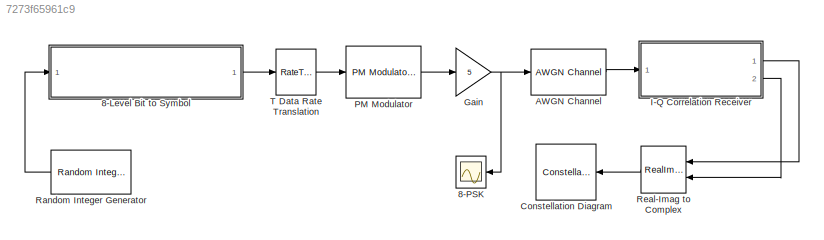
MODEL slx_7273f65961c9
KIND model
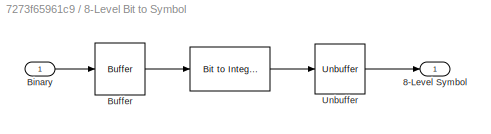
BLOCK [SubSystem] 8-Level Bit to Symbol 
  Ports = [1, 1]
  RequestExecContextInheritance = off
BLOCK [Reference] 8-Level Bit to Symbol /   REF=commutil2/Bit to Integer
Converter
  Ports = [1, 1]
  SourceBlock = commutil2/Bit to Integer\nConverter
  SourceType = Bit to Integer Converter
  bitOrder = MSB first
  nbits = 3
  outDtype = Inherit via internal rule
  outDtypeSigned = Inherit via internal rule
  signedOutputValues = Unsigned
BLOCK [Outport] 8-Level Bit to Symbol /8-Level Symbol
  IconDisplay = Port number
BLOCK [Inport] 8-Level Bit to Symbol /Binary
  IconDisplay = Port number
BLOCK [Buffer] 8-Level Bit to Symbol /Buffer
  N = 3
  TreatMby1Signals = One channel
BLOCK [Unbuffer] 8-Level Bit to Symbol /Unbuffer
  Ports = [1, 1]
  SampleBasedProcessing = Same as frame based
  ic = 3
BLOCK [Scope] 8-PSK
  DataFormat = StructureWithTime
  Floating = off
  NumInputPorts = 1
  Ports = [1]
  SampleTime = 0
  ShowLegends = off
  TimeRange = 0.005
  YMax = 6
  YMin = -6
BLOCK [Reference] AWGN Channel  REF=commchan3/AWGN
Channel
  EbNodB = 15
  EsNodB = 20
  InputProcessing = Inherited (this choice will be removed - see release notes)
  Ports = [1, 1]
  Ps = 12.5
  SNRdB = 10
  SourceBlock = commchan3/AWGN\nChannel
  SourceType = AWGN Channel
  Tsym = 3e-3
  UserDataPersistent = on
  bitsPerSym = 3
  noiseMode = Signal to noise ratio  (Eb/No)
  seed = randseed
  variance = 0
BLOCK [ConstellationDiagram] Constellation Diagram
  Ports = [1]
  ScopeSpecificationString = comm.scopes.ConstellationDiagramBlockCfg('CurrentConfiguration', extmgr.ConfigurationSet(extmgr.Configuration('Core','General UI',true),extmgr.Configuration('Core','Source UI',true),extmgr.Configuration('Sources','WiredSimulink',true),extmgr.Configuration('Sources','Simulink',false),extmgr.Configuration('Sources','File',false),extmgr.Configuration('Sources','Workspace',false),extmgr.Configuration(...<+1784ch>
BLOCK [Gain] Gain
  Gain = 5
  OutDataTypeStr = Inherit: Inherit via internal rule
  ParamDataTypeStr = Inherit: Inherit via internal rule
  SaturateOnIntegerOverflow = off
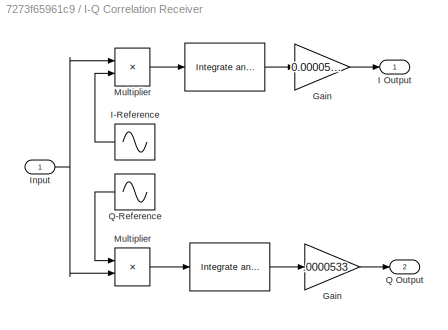
BLOCK [SubSystem] I-Q Correlation Receiver
  Ports = [1, 2]
  RequestExecContextInheritance = off
BLOCK [Reference] I-Q Correlation Receiver/   REF=commfilt2/Integrate
and Dump
  LockScale = off
  Ports = [1, 1]
  SourceBlock = commfilt2/Integrate\nand Dump
  SourceType = Integrate and Dump
  accumFracLength = 30
  accumMode = Inherit via internal rule
  accumWordLength = 32
  nodump = off
  obssamples = 1500
  offsetsamples = 0
  outputFracLength = 30
  outputMode = Same as accumulator
  outputWordLength = 32
  overflowMode = off
  roundingMode = Floor
BLOCK [Reference] I-Q Correlation Receiver/    REF=commfilt2/Integrate
and Dump
  LockScale = off
  Ports = [1, 1]
  SourceBlock = commfilt2/Integrate\nand Dump
  SourceType = Integrate and Dump
  accumFracLength = 30
  accumMode = Inherit via internal rule
  accumWordLength = 32
  nodump = off
  obssamples = 1500
  offsetsamples = 0
  outputFracLength = 30
  outputMode = Same as accumulator
  outputWordLength = 32
  overflowMode = off
  roundingMode = Floor
BLOCK [Gain] I-Q Correlation Receiver/Gain
  Gain = 0.0000533
  OutDataTypeStr = Inherit: Inherit via internal rule
  ParamDataTypeStr = Inherit: Inherit via internal rule
  SaturateOnIntegerOverflow = off
BLOCK [Gain] I-Q Correlation Receiver/Gain 
  Gain = .0000533
  OutDataTypeStr = Inherit: Inherit via internal rule
  ParamDataTypeStr = Inherit: Inherit via internal rule
  SaturateOnIntegerOverflow = off
BLOCK [Outport] I-Q Correlation Receiver/I Output
  IconDisplay = Port number
BLOCK [Sin] I-Q Correlation Receiver/I-Reference
  Amplitude = 5
  Frequency = 40000*pi
  Phase = pi/2
  Ports = [0, 1]
  SampleTime = 2e-6
BLOCK [Inport] I-Q Correlation Receiver/Input
  IconDisplay = Port number
BLOCK [Product] I-Q Correlation Receiver/Multiplier
  InputSameDT = off
  OutDataTypeStr = Inherit: Inherit via internal rule
  Ports = [2, 1]
  SaturateOnIntegerOverflow = off
BLOCK [Product] I-Q Correlation Receiver/Multiplier 
  InputSameDT = off
  OutDataTypeStr = Inherit: Inherit via internal rule
  Ports = [2, 1]
  SaturateOnIntegerOverflow = off
BLOCK [Outport] I-Q Correlation Receiver/Q Output
  IconDisplay = Port number
  Port = 2
BLOCK [Sin] I-Q Correlation Receiver/Q-Reference
  Amplitude = 5
  Frequency = 40000*pi
  Ports = [0, 1]
  SampleTime = 2e-6
BLOCK [Reference] PM Modulator  REF=commanapbnd3/PM
Modulator
Passband
  Fc = 20000
  Kc = pi/4
  Ph = 0
  Ports = [1, 1]
  SourceBlock = commanapbnd3/PM\nModulator\nPassband
  SourceType = PM Modulator Passband
BLOCK [Reference] Random Integer Generator  REF=commrandsrc2/Random Integer
Generator
  Ports = [0, 1]
  SourceBlock = commrandsrc2/Random Integer\nGenerator
  SourceType = Random Integer Generator
  Ts = 1e-3
  frameBased = off
  mul = 2
  orient = off
  outDataType = double
  sampPerFrame = 1
  seed = randseed
BLOCK [RealImagToComplex] Real-Imag to Complex
  Ports = [2, 1]
BLOCK [RateTransition] T Data Rate Translation
  OutPortSampleTime = 2e-6
LINE 8-Level Bit to Symbol / :1 -> 8-Level Bit to Symbol /Unbuffer:1
LINE 8-Level Bit to Symbol /Binary:1 -> 8-Level Bit to Symbol /Buffer:1
LINE 8-Level Bit to Symbol /Buffer:1 -> 8-Level Bit to Symbol / :1
LINE 8-Level Bit to Symbol /Unbuffer:1 -> 8-Level Bit to Symbol /8-Level Symbol:1
LINE 8-Level Bit to Symbol :1 -> T Data Rate Translation:1
LINE AWGN Channel:1 -> I-Q Correlation Receiver:1
NET Gain:1 -> 8-PSK:1, AWGN Channel:1
LINE I-Q Correlation Receiver/  :1 -> I-Q Correlation Receiver/Gain :1
LINE I-Q Correlation Receiver/ :1 -> I-Q Correlation Receiver/Gain:1
LINE I-Q Correlation Receiver/Gain :1 -> I-Q Correlation Receiver/Q Output:1
LINE I-Q Correlation Receiver/Gain:1 -> I-Q Correlation Receiver/I Output:1
LINE I-Q Correlation Receiver/I-Reference:1 -> I-Q Correlation Receiver/Multiplier :2
NET I-Q Correlation Receiver/Input:1 -> I-Q Correlation Receiver/Multiplier :1, I-Q Correlation Receiver/Multiplier:2
LINE I-Q Correlation Receiver/Multiplier :1 -> I-Q Correlation Receiver/ :1
LINE I-Q Correlation Receiver/Multiplier:1 -> I-Q Correlation Receiver/  :1
LINE I-Q Correlation Receiver/Q-Reference:1 -> I-Q Correlation Receiver/Multiplier:1
LINE I-Q Correlation Receiver:1 -> Real-Imag to Complex:1
LINE I-Q Correlation Receiver:2 -> Real-Imag to Complex:2
LINE PM Modulator:1 -> Gain:1
LINE Random Integer Generator:1 -> 8-Level Bit to Symbol :1
LINE Real-Imag to Complex:1 -> Constellation Diagram:1
LINE T Data Rate Translation:1 -> PM Modulator:1
note: NET lines group one-source signal fan-out (src -> all destinations, sorted); 1:1 wires keep LINE
